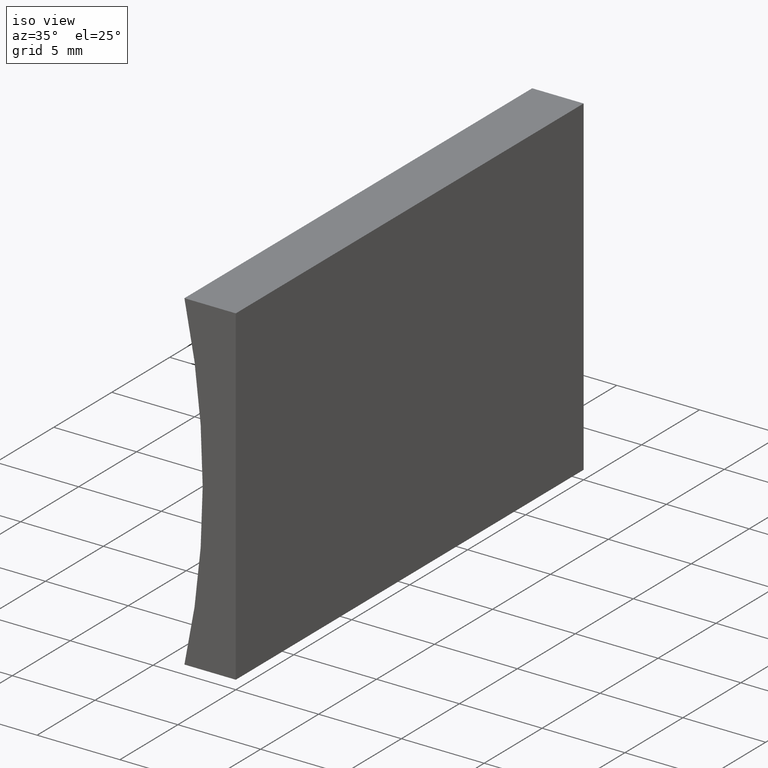
[diagram: clean part render]
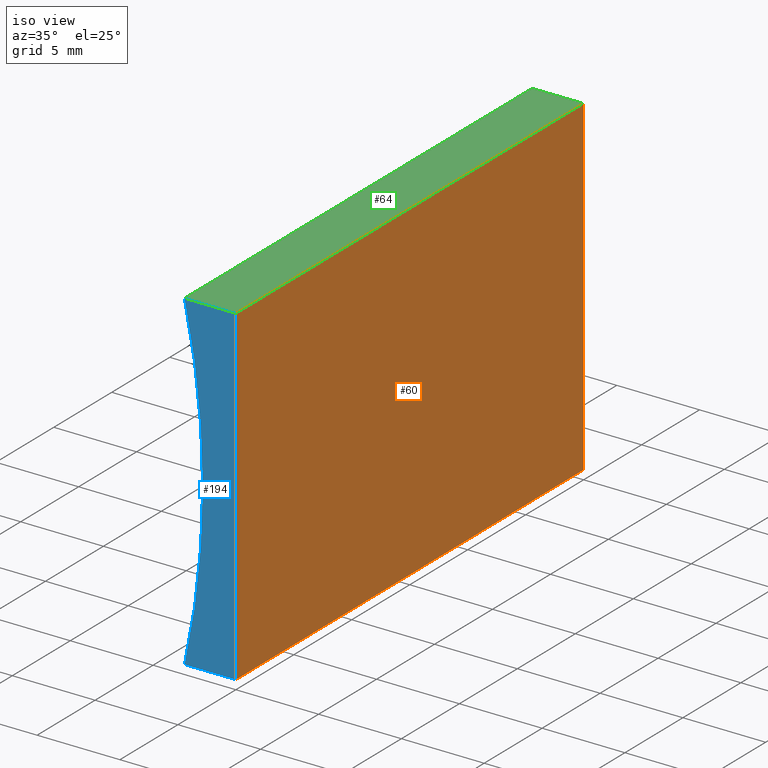
[diagram: same view with three faces highlighted in distinct colors, each labeled with its STEP entity id]
A machine part, iso view with three faces highlighted in distinct colors.
Their STEP definitions:

[orange] entity #60 — the highlighted planar face has unit normal (-1, 0, 0).
#1 = EDGE_CURVE ( 'NONE', #10, #32, #5, .T. ) ;
#5 = LINE ( 'NONE', #198, #146 ) ;
#10 = VERTEX_POINT ( 'NONE', #115 ) ;
#26 = LINE ( 'NONE', #59, #152 ) ;
#27 = EDGE_LOOP ( 'NONE', ( #43, #39, #38, #35 ) ) ;
#32 = VERTEX_POINT ( 'NONE', #127 ) ;
#34 = EDGE_CURVE ( 'NONE', #154, #10, #26, .T. ) ;
#35 = ORIENTED_EDGE ( 'NONE', *, *, #199, .T. ) ;
#38 = ORIENTED_EDGE ( 'NONE', *, *, #34, .F. ) ;
#39 = ORIENTED_EDGE ( 'NONE', *, *, #1, .F. ) ;
#40 = CARTESIAN_POINT ( 'NONE',  ( 2.449293598294706500E-015, 30.00000000000000000, 20.00000000000000000 ) ) ;
#43 = ORIENTED_EDGE ( 'NONE', *, *, #61, .T. ) ;
#48 = DIRECTION ( 'NONE',  ( -1.224646799147353200E-016, -0.0000000000000000000, -1.000000000000000000 ) ) ;
#49 = DIRECTION ( 'NONE',  ( -0.0000000000000000000, -1.000000000000000000, -0.0000000000000000000 ) ) ;
#53 = DIRECTION ( 'NONE',  ( -1.000000000000000000, 0.0000000000000000000, 1.224646799147353200E-016 ) ) ;
#59 = CARTESIAN_POINT ( 'NONE',  ( 0.0000000000000000000, 30.00000000000000000, 0.0000000000000000000 ) ) ;
#60 = ADVANCED_FACE ( 'NONE', ( #134 ), #123, .F. ) ;
#61 = EDGE_CURVE ( 'NONE', #172, #32, #165, .T. ) ;
#69 = DIRECTION ( 'NONE',  ( -0.0000000000000000000, -1.000000000000000000, -0.0000000000000000000 ) ) ;
#74 = DIRECTION ( 'NONE',  ( -1.224646799147353200E-016, -0.0000000000000000000, -1.000000000000000000 ) ) ;
#115 = CARTESIAN_POINT ( 'NONE',  ( 0.0000000000000000000, 30.00000000000000000, 0.0000000000000000000 ) ) ;
#123 = PLANE ( 'NONE',  #150 ) ;
#127 = CARTESIAN_POINT ( 'NONE',  ( 0.0000000000000000000, 0.0000000000000000000, 0.0000000000000000000 ) ) ;
#131 = CARTESIAN_POINT ( 'NONE',  ( 2.449293598294706500E-015, 30.00000000000000000, 20.00000000000000000 ) ) ;
#134 = FACE_OUTER_BOUND ( 'NONE', #27, .T. ) ;
#137 = VECTOR ( 'NONE', #74, 1000.000000000000000 ) ;
#142 = DIRECTION ( 'NONE',  ( 1.224646799147353200E-016, 0.0000000000000000000, 1.000000000000000000 ) ) ;
#146 = VECTOR ( 'NONE', #49, 1000.000000000000000 ) ;
#148 = LINE ( 'NONE', #40, #156 ) ;
#150 = AXIS2_PLACEMENT_3D ( 'NONE', #157, #53, #142 ) ;
#152 = VECTOR ( 'NONE', #48, 1000.000000000000000 ) ;
#154 = VERTEX_POINT ( 'NONE', #131 ) ;
#156 = VECTOR ( 'NONE', #69, 1000.000000000000000 ) ;
#157 = CARTESIAN_POINT ( 'NONE',  ( 0.0000000000000000000, 30.00000000000000000, 0.0000000000000000000 ) ) ;
#165 = LINE ( 'NONE', #179, #137 ) ;
#166 = CARTESIAN_POINT ( 'NONE',  ( 2.449293598294706500E-015, 0.0000000000000000000, 20.00000000000000000 ) ) ;
#172 = VERTEX_POINT ( 'NONE', #166 ) ;
#179 = CARTESIAN_POINT ( 'NONE',  ( 0.0000000000000000000, 0.0000000000000000000, 0.0000000000000000000 ) ) ;
#198 = CARTESIAN_POINT ( 'NONE',  ( 0.0000000000000000000, 30.00000000000000000, 0.0000000000000000000 ) ) ;
#199 = EDGE_CURVE ( 'NONE', #154, #172, #148, .T. ) ;

[blue] entity #194 — the highlighted planar face has unit normal (0, 1, 0).
#2 = EDGE_LOOP ( 'NONE', ( #13, #92, #108, #86 ) ) ;
#9 = VECTOR ( 'NONE', #37, 1000.000000000000000 ) ;
#13 = ORIENTED_EDGE ( 'NONE', *, *, #62, .F. ) ;
#15 = EDGE_CURVE ( 'NONE', #93, #172, #50, .T. ) ;
#29 = AXIS2_PLACEMENT_3D ( 'NONE', #149, #82, #54 ) ;
#32 = VERTEX_POINT ( 'NONE', #127 ) ;
#37 = DIRECTION ( 'NONE',  ( 1.000000000000000000, -0.0000000000000000000, 1.117806566351713100E-015 ) ) ;
#50 = LINE ( 'NONE', #72, #9 ) ;
#52 = EDGE_CURVE ( 'NONE', #174, #93, #184, .T. ) ;
#54 = DIRECTION ( 'NONE',  ( 0.0000000000000000000, -0.0000000000000000000, 1.000000000000000000 ) ) ;
#61 = EDGE_CURVE ( 'NONE', #172, #32, #165, .T. ) ;
#62 = EDGE_CURVE ( 'NONE', #32, #174, #133, .T. ) ;
#65 = DIRECTION ( 'NONE',  ( -0.0000000000000000000, -1.000000000000000000, -0.0000000000000000000 ) ) ;
#66 = AXIS2_PLACEMENT_3D ( 'NONE', #176, #65, #163 ) ;
#72 = CARTESIAN_POINT ( 'NONE',  ( 2.449293598294706500E-015, 0.0000000000000000000, 20.00000000000000000 ) ) ;
#74 = DIRECTION ( 'NONE',  ( -1.224646799147353200E-016, -0.0000000000000000000, -1.000000000000000000 ) ) ;
#82 = DIRECTION ( 'NONE',  ( 0.0000000000000000000, 1.000000000000000000, 0.0000000000000000000 ) ) ;
#86 = ORIENTED_EDGE ( 'NONE', *, *, #52, .F. ) ;
#92 = ORIENTED_EDGE ( 'NONE', *, *, #61, .F. ) ;
#93 = VERTEX_POINT ( 'NONE', #107 ) ;
#95 = VECTOR ( 'NONE', #191, 1000.000000000000000 ) ;
#107 = CARTESIAN_POINT ( 'NONE',  ( -3.103799043941172500, 0.0000000000000000000, 19.99999999999999600 ) ) ;
#108 = ORIENTED_EDGE ( 'NONE', *, *, #15, .F. ) ;
#121 = FACE_OUTER_BOUND ( 'NONE', #2, .T. ) ;
#127 = CARTESIAN_POINT ( 'NONE',  ( 0.0000000000000000000, 0.0000000000000000000, 0.0000000000000000000 ) ) ;
#133 = LINE ( 'NONE', #202, #95 ) ;
#137 = VECTOR ( 'NONE', #74, 1000.000000000000000 ) ;
#140 = PLANE ( 'NONE',  #29 ) ;
#149 = CARTESIAN_POINT ( 'NONE',  ( -47.85000000000000100, 0.0000000000000000000, 10.00000000000000900 ) ) ;
#163 = DIRECTION ( 'NONE',  ( 0.0000000000000000000, 0.0000000000000000000, 1.000000000000000000 ) ) ;
#165 = LINE ( 'NONE', #179, #137 ) ;
#166 = CARTESIAN_POINT ( 'NONE',  ( 2.449293598294706500E-015, 0.0000000000000000000, 20.00000000000000000 ) ) ;
#172 = VERTEX_POINT ( 'NONE', #166 ) ;
#174 = VERTEX_POINT ( 'NONE', #186 ) ;
#176 = CARTESIAN_POINT ( 'NONE',  ( -47.85000000000000100, 0.0000000000000000000, 10.00000000000000900 ) ) ;
#179 = CARTESIAN_POINT ( 'NONE',  ( 0.0000000000000000000, 0.0000000000000000000, 0.0000000000000000000 ) ) ;
#184 = CIRCLE ( 'NONE', #66, 45.85000000000000100 ) ;
#186 = CARTESIAN_POINT ( 'NONE',  ( -3.103799043941174700, 0.0000000000000000000, 3.469446951953614200E-015 ) ) ;
#191 = DIRECTION ( 'NONE',  ( -1.000000000000000000, 0.0000000000000000000, 2.235613132703426200E-015 ) ) ;
#194 = ADVANCED_FACE ( 'NONE', ( #121 ), #140, .F. ) ;
#202 = CARTESIAN_POINT ( 'NONE',  ( 0.0000000000000000000, 0.0000000000000000000, 0.0000000000000000000 ) ) ;

[green] entity #64 — the highlighted planar face has unit normal (0, 0, -1).
#3 = VERTEX_POINT ( 'NONE', #78 ) ;
#7 = EDGE_CURVE ( 'NONE', #3, #93, #80, .T. ) ;
#9 = VECTOR ( 'NONE', #37, 1000.000000000000000 ) ;
#15 = EDGE_CURVE ( 'NONE', #93, #172, #50, .T. ) ;
#17 = AXIS2_PLACEMENT_3D ( 'NONE', #22, #201, #83 ) ;
#22 = CARTESIAN_POINT ( 'NONE',  ( 2.449293598294706500E-015, 30.00000000000000000, 20.00000000000000000 ) ) ;
#37 = DIRECTION ( 'NONE',  ( 1.000000000000000000, -0.0000000000000000000, 1.117806566351713100E-015 ) ) ;
#40 = CARTESIAN_POINT ( 'NONE',  ( 2.449293598294706500E-015, 30.00000000000000000, 20.00000000000000000 ) ) ;
#41 = ORIENTED_EDGE ( 'NONE', *, *, #105, .F. ) ;
#44 = ORIENTED_EDGE ( 'NONE', *, *, #199, .F. ) ;
#47 = LINE ( 'NONE', #120, #117 ) ;
#50 = LINE ( 'NONE', #72, #9 ) ;
#55 = VECTOR ( 'NONE', #67, 1000.000000000000000 ) ;
#64 = ADVANCED_FACE ( 'NONE', ( #128 ), #75, .F. ) ;
#67 = DIRECTION ( 'NONE',  ( -0.0000000000000000000, -1.000000000000000000, -0.0000000000000000000 ) ) ;
#69 = DIRECTION ( 'NONE',  ( -0.0000000000000000000, -1.000000000000000000, -0.0000000000000000000 ) ) ;
#72 = CARTESIAN_POINT ( 'NONE',  ( 2.449293598294706500E-015, 0.0000000000000000000, 20.00000000000000000 ) ) ;
#75 = PLANE ( 'NONE',  #17 ) ;
#78 = CARTESIAN_POINT ( 'NONE',  ( -3.103799043941172500, 30.00000000000000000, 19.99999999999999600 ) ) ;
#80 = LINE ( 'NONE', #153, #55 ) ;
#83 = DIRECTION ( 'NONE',  ( -1.000000000000000000, 0.0000000000000000000, -1.117806566351713100E-015 ) ) ;
#87 = EDGE_LOOP ( 'NONE', ( #177, #44, #41, #188 ) ) ;
#93 = VERTEX_POINT ( 'NONE', #107 ) ;
#105 = EDGE_CURVE ( 'NONE', #3, #154, #47, .T. ) ;
#107 = CARTESIAN_POINT ( 'NONE',  ( -3.103799043941172500, 0.0000000000000000000, 19.99999999999999600 ) ) ;
#117 = VECTOR ( 'NONE', #170, 1000.000000000000000 ) ;
#120 = CARTESIAN_POINT ( 'NONE',  ( 2.449293598294706500E-015, 30.00000000000000000, 20.00000000000000000 ) ) ;
#128 = FACE_OUTER_BOUND ( 'NONE', #87, .T. ) ;
#131 = CARTESIAN_POINT ( 'NONE',  ( 2.449293598294706500E-015, 30.00000000000000000, 20.00000000000000000 ) ) ;
#148 = LINE ( 'NONE', #40, #156 ) ;
#153 = CARTESIAN_POINT ( 'NONE',  ( -3.103799043941172500, 30.00000000000000000, 19.99999999999999600 ) ) ;
#154 = VERTEX_POINT ( 'NONE', #131 ) ;
#156 = VECTOR ( 'NONE', #69, 1000.000000000000000 ) ;
#166 = CARTESIAN_POINT ( 'NONE',  ( 2.449293598294706500E-015, 0.0000000000000000000, 20.00000000000000000 ) ) ;
#170 = DIRECTION ( 'NONE',  ( 1.000000000000000000, -0.0000000000000000000, 1.117806566351713100E-015 ) ) ;
#172 = VERTEX_POINT ( 'NONE', #166 ) ;
#177 = ORIENTED_EDGE ( 'NONE', *, *, #15, .T. ) ;
#188 = ORIENTED_EDGE ( 'NONE', *, *, #7, .T. ) ;
#199 = EDGE_CURVE ( 'NONE', #154, #172, #148, .T. ) ;
#201 = DIRECTION ( 'NONE',  ( 1.117806566351713100E-015, 0.0000000000000000000, -1.000000000000000000 ) ) ;